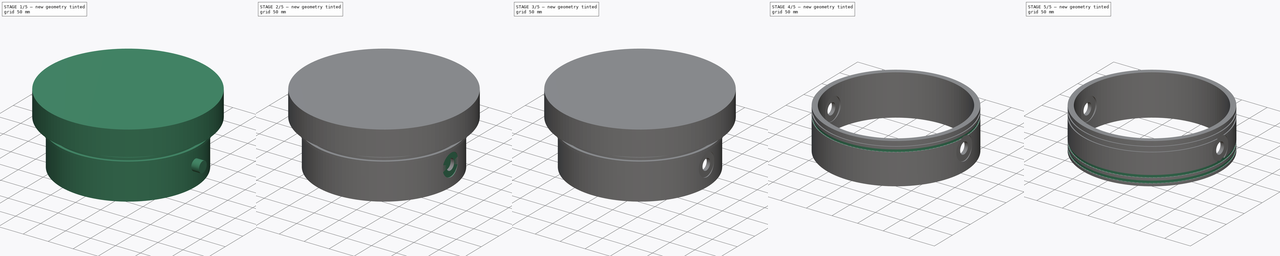
[diagram: build sequence overview — one tinted view per stage of 5, left to right]
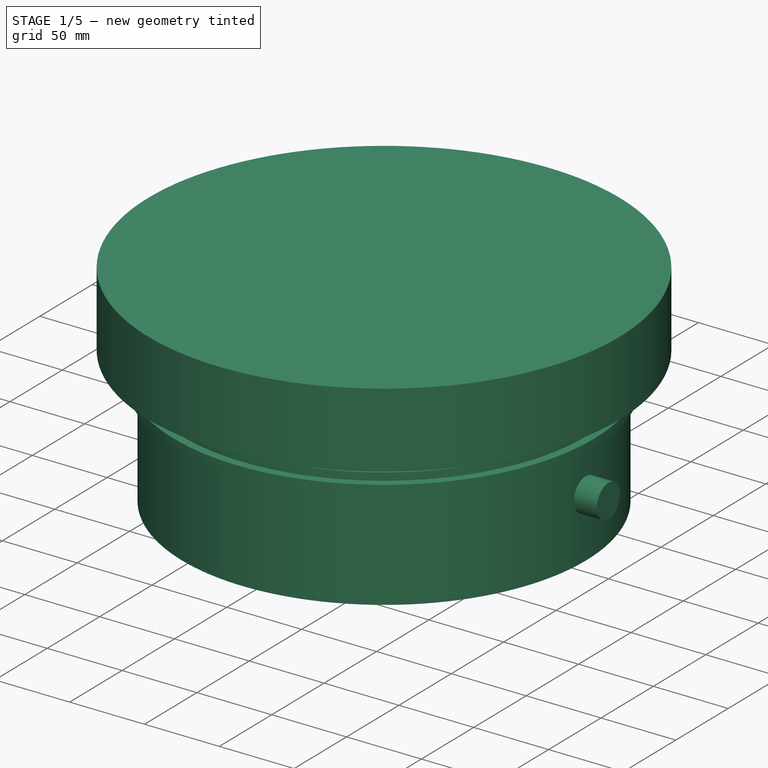
[diagram: stage 1 of 5 — iso view after this stage's code; geometry added in this stage tinted green]
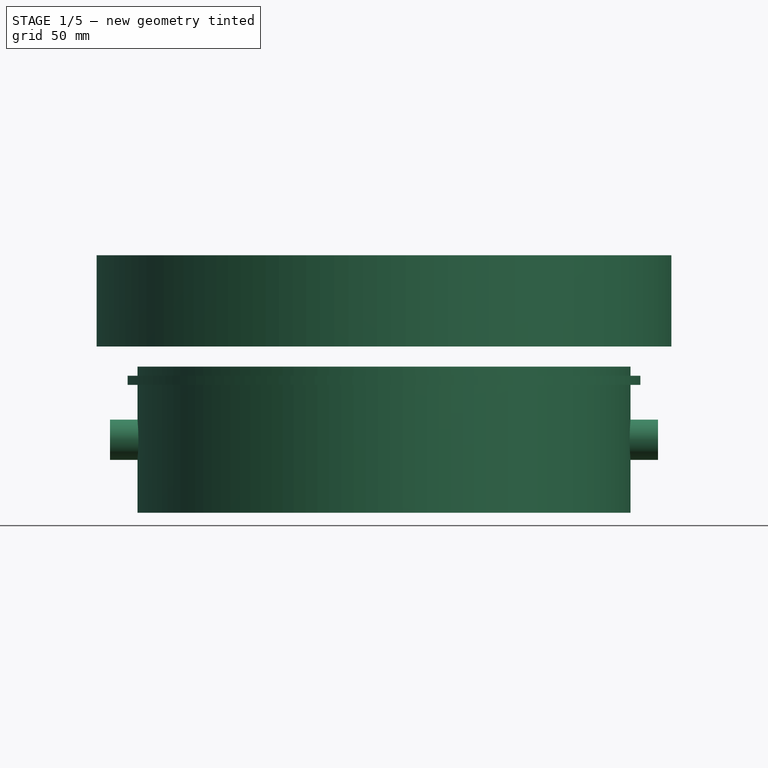
[diagram: stage 1 of 5 — front view after this stage's code; geometry added in this stage tinted green]
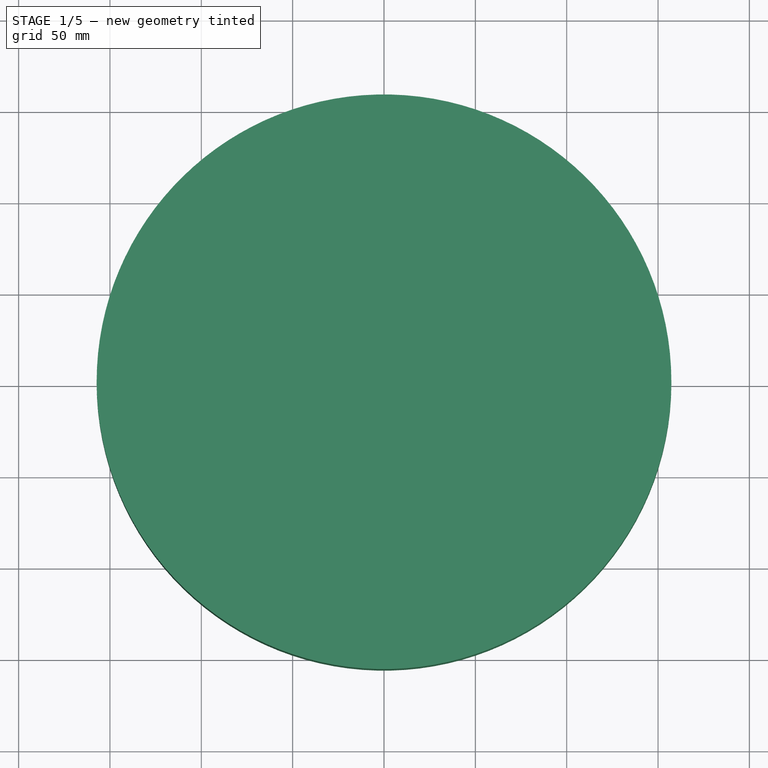
[diagram: stage 1 of 5 — top view after this stage's code; geometry added in this stage tinted green]
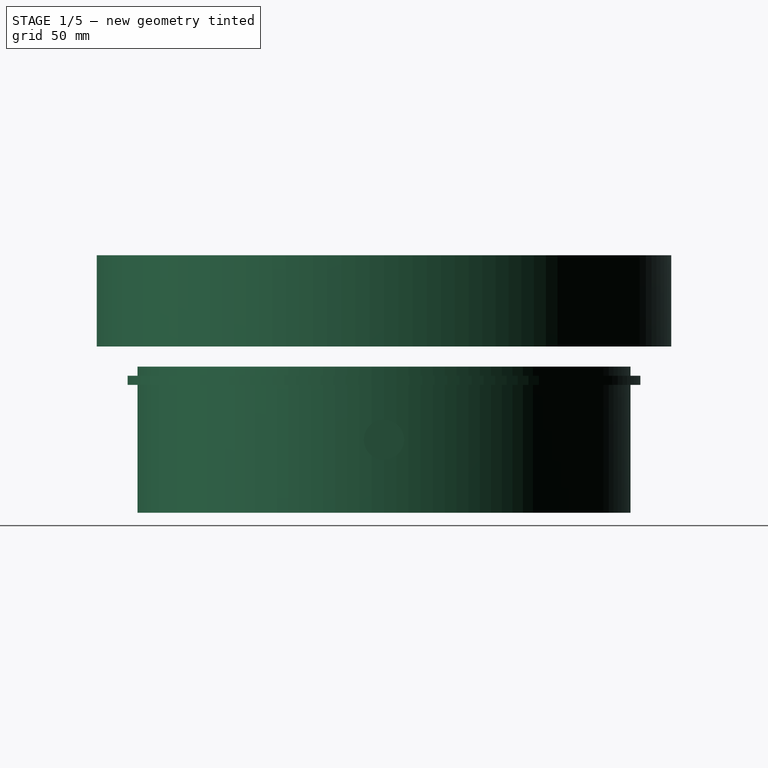
[diagram: stage 1 of 5 — right view after this stage's code; geometry added in this stage tinted green]
FCSTD DOCUMENT  (FreeCAD 0.17R13528 (Git))
Label: ringverbinder
License: All rights reserved
LicenseURL: http://en.wikipedia.org/wiki/All_rights_reserved
objects: Part::Extrusion×11, Part::Cut×10, Sketcher::SketchObject×5
note: 26 computed .brp shape members not serialized (recipe doc carries the construction recipe); baked Part::Feature solids carry a one-line shape summary decoded from their .brp

FEATURE [Sketcher::SketchObject] Sketch
  sketch-geometry (2):
    g0: Circle CenterX=0 CenterY=0 CenterZ=0 NormalX=0 NormalY=0 NormalZ=1 AngleXU=0 Radius=125
    g1: Circle CenterX=0 CenterY=0 CenterZ=0 NormalX=0 NormalY=0 NormalZ=1 AngleXU=0 Radius=134.952
  constraints (2):
    c: Coincident(g0,g-1)
    c: Coincident(g1,g-1)
FEATURE [Part::Extrusion] Extrude001
  Base = -> Sketch
  Dir = (0,0,1)
  DirMode = 2
  FaceMakerClass = Part::FaceMakerBullseye
  LengthFwd = 80
  LengthRev = 0
  Placement = pos=(0,0,-40) rot=(0,0,1;0rad)
  Solid = true
  Symmetric = false
FEATURE [Sketcher::SketchObject] Sketch002
  Placement = pos=(0,0,0) rot=(0.57735,0.57735,0.57735;2.0944rad)
  sketch-geometry (1):
    g0: Circle CenterX=0 CenterY=0 CenterZ=0 NormalX=0 NormalY=0 NormalZ=1 AngleXU=0 Radius=11
  constraints (1):
    c: Coincident(g0,g-1)
FEATURE [Part::Extrusion] Extrude
  Base = -> Sketch002
  Dir = (1,0,0)
  DirMode = 2
  FaceMakerClass = Part::FaceMakerBullseye
  LengthFwd = 300
  LengthRev = 0
  Solid = true
  Symmetric = true
FEATURE [Sketcher::SketchObject] Sketch004
  sketch-geometry (1):
    g0: Circle CenterX=0 CenterY=0 CenterZ=0 NormalX=0 NormalY=0 NormalZ=1 AngleXU=0 Radius=157.294
  constraints (1):
    c: Coincident(g0,g-1)
FEATURE [Part::Extrusion] Extrude007
  Base = -> Sketch004
  Dir = (0,0,1)
  DirMode = 2
  FaceMakerClass = Part::FaceMakerBullseye
  LengthFwd = 50
  LengthRev = 0
  Placement = pos=(0,0,51) rot=(0,0,1;0rad)
  Solid = true
  Symmetric = false
FEATURE [Part::Extrusion] Extrude009
  Base = -> Sketch005
  Dir = (0,0,1)
  DirMode = 2
  FaceMakerClass = Part::FaceMakerBullseye
  LengthFwd = 5
  LengthRev = 0
  Placement = pos=(0,0,30) rot=(0,0,1;0rad)
  Solid = true
  Symmetric = false
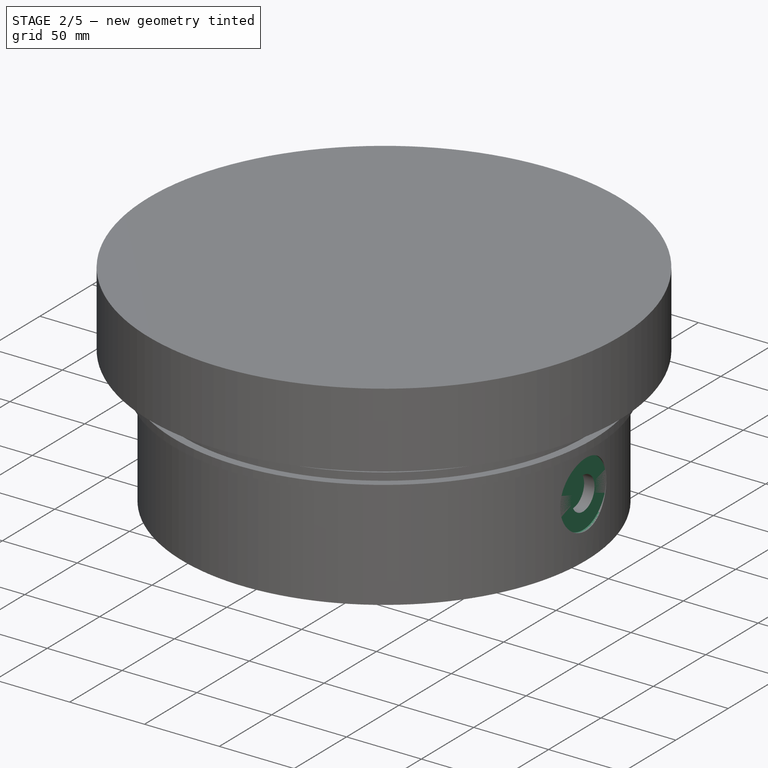
[diagram: stage 2 of 5 — iso view after this stage's code; geometry added in this stage tinted green]
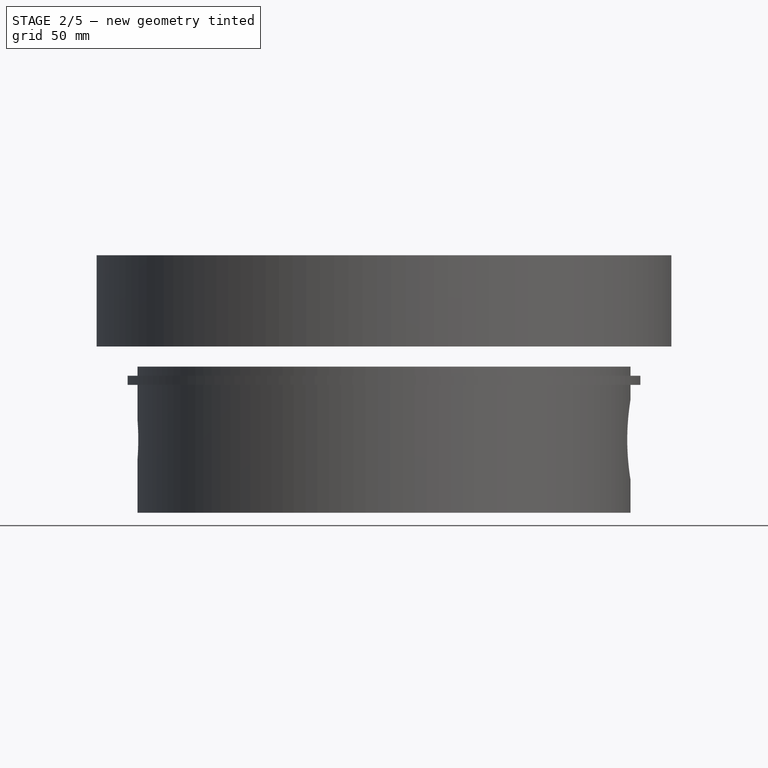
[diagram: stage 2 of 5 — front view after this stage's code; geometry added in this stage tinted green]
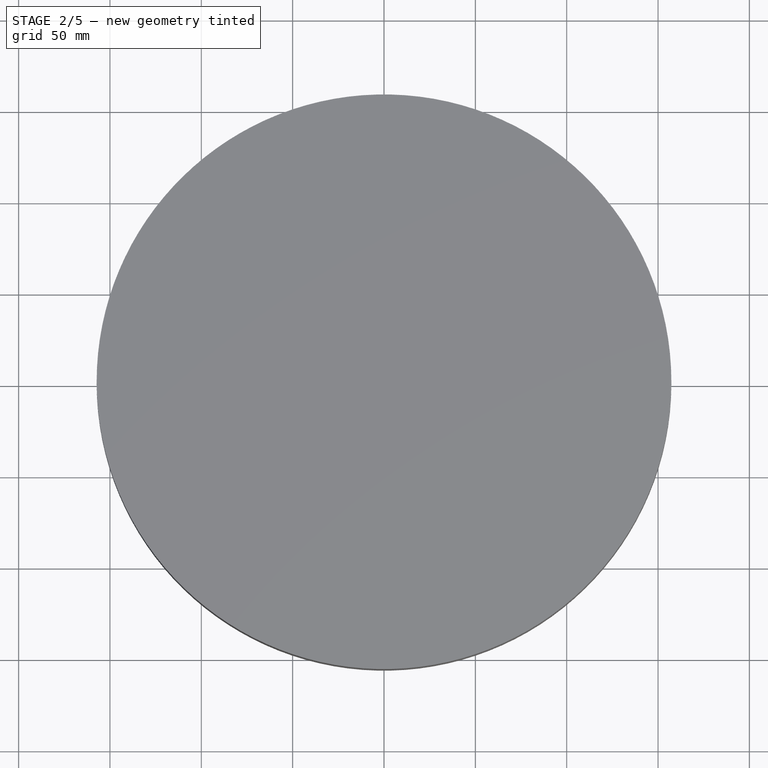
[diagram: stage 2 of 5 — top view after this stage's code; geometry added in this stage tinted green]
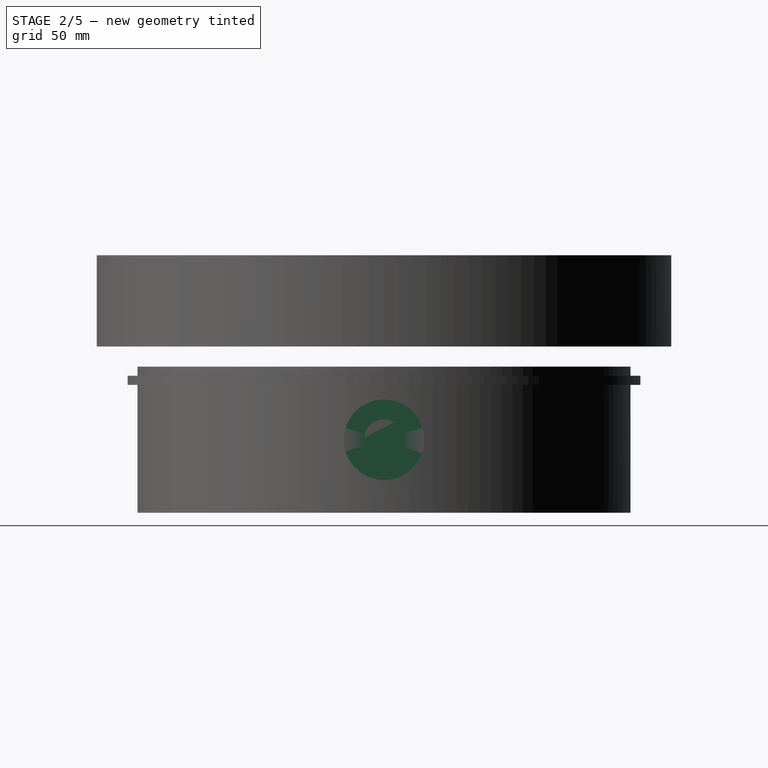
[diagram: stage 2 of 5 — right view after this stage's code; geometry added in this stage tinted green]
FEATURE [Sketcher::SketchObject] Sketch003
  MapMode = 5
  Placement = pos=(150,0,0) rot=(0.57735,0.57735,0.57735;2.0944rad)
  Support = -> [Extrude]
  sketch-geometry (1):
    g0: Circle CenterX=0 CenterY=0 CenterZ=0 NormalX=0 NormalY=0 NormalZ=1 AngleXU=0 Radius=22
FEATURE [Part::Extrusion] Extrude002
  Base = -> Sketch003
  Dir = (-1,0,0)
  DirMode = 0
  FaceMakerClass = Part::FaceMakerBullseye
  LengthFwd = 10
  LengthRev = 0
  Placement = pos=(-7,0,0) rot=(0,0,1;0rad)
  Solid = true
  Symmetric = false
FEATURE [Part::Extrusion] Extrude006
  Base = -> Sketch003
  Dir = (-1,0,0)
  DirMode = 0
  FaceMakerClass = Part::FaceMakerBullseye
  LengthFwd = 10
  LengthRev = 0
  Placement = pos=(-24,0,0) rot=(0,0,1;0rad)
  Solid = true
  Symmetric = false
FEATURE [Part::Cut] Cut
  Base = -> Extrude001
  Tool = -> Extrude
FEATURE [Part::Cut] Cut001
  Base = -> Cut
  Tool = -> Extrude002
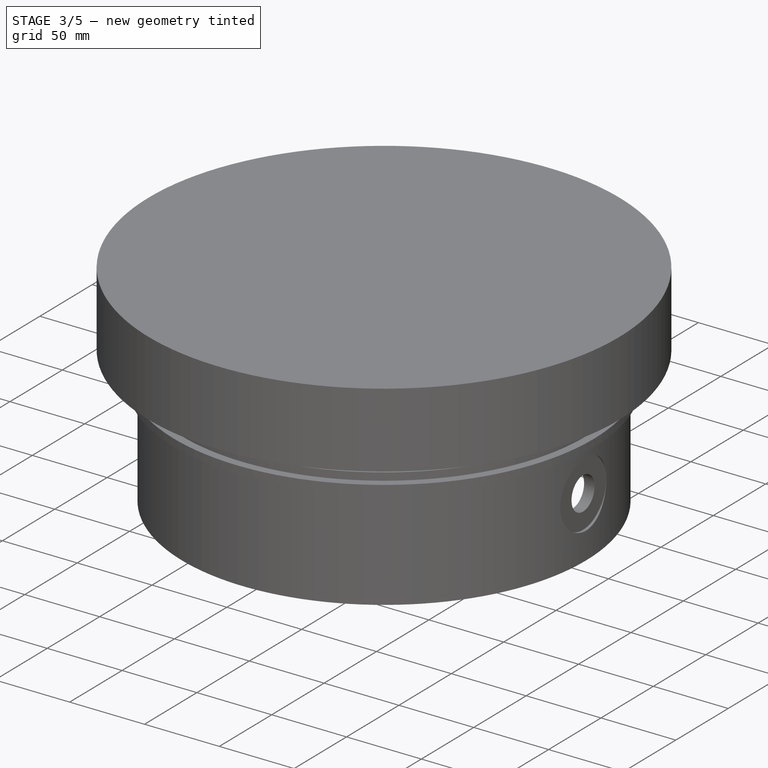
[diagram: stage 3 of 5 — iso view after this stage's code; geometry added in this stage tinted green]
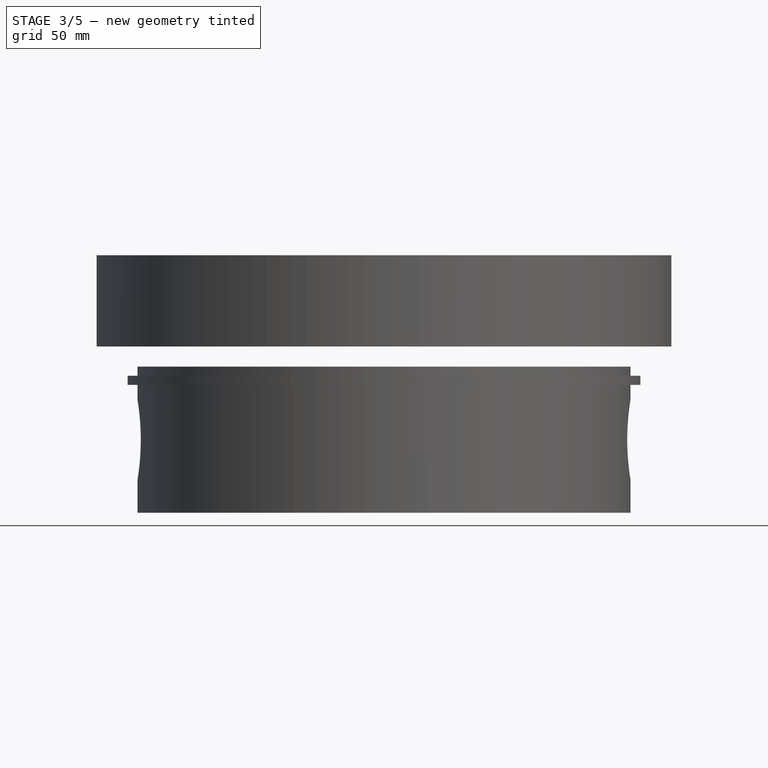
[diagram: stage 3 of 5 — front view after this stage's code; geometry added in this stage tinted green]
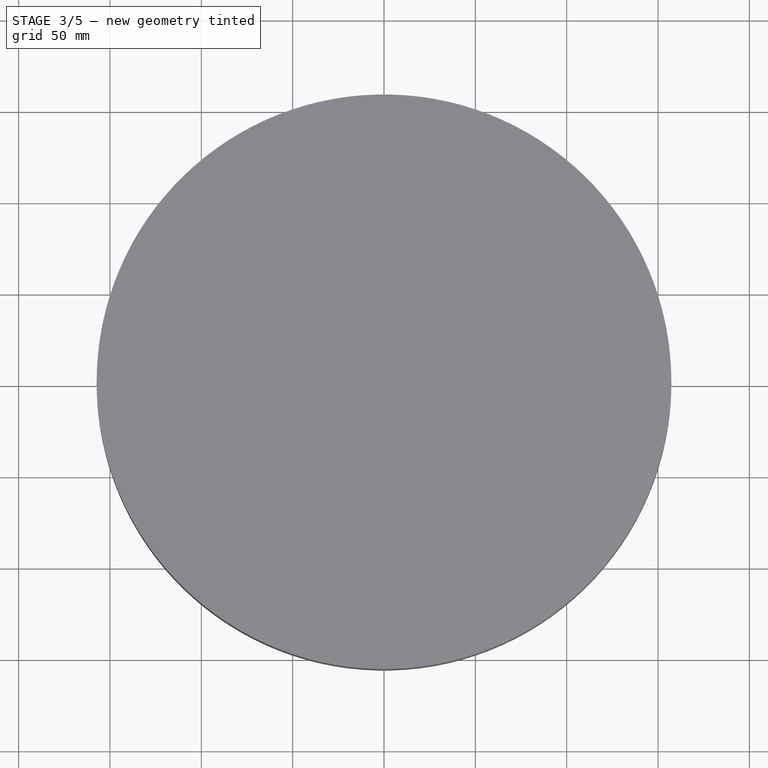
[diagram: stage 3 of 5 — top view after this stage's code; geometry added in this stage tinted green]
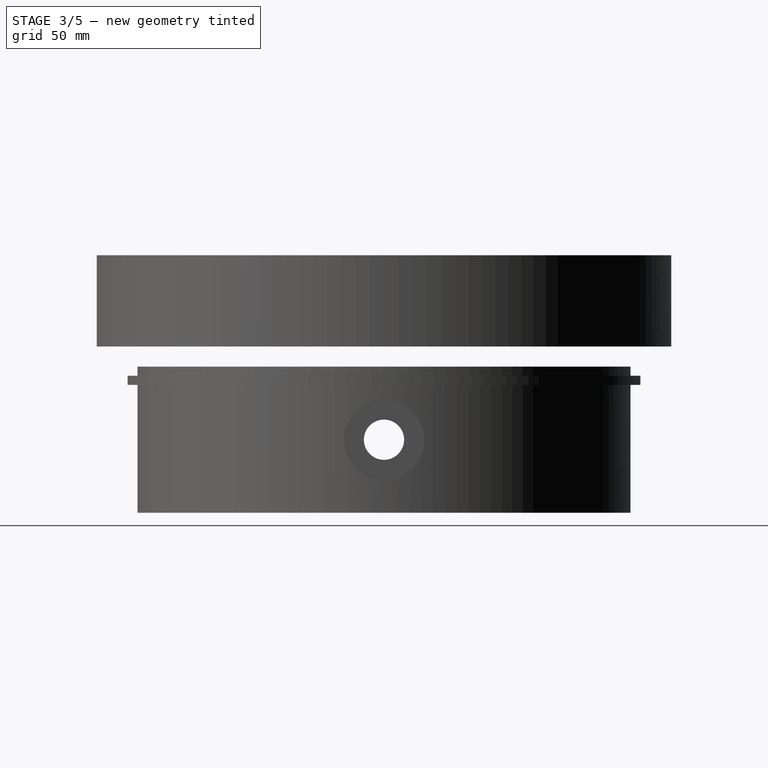
[diagram: stage 3 of 5 — right view after this stage's code; geometry added in this stage tinted green]
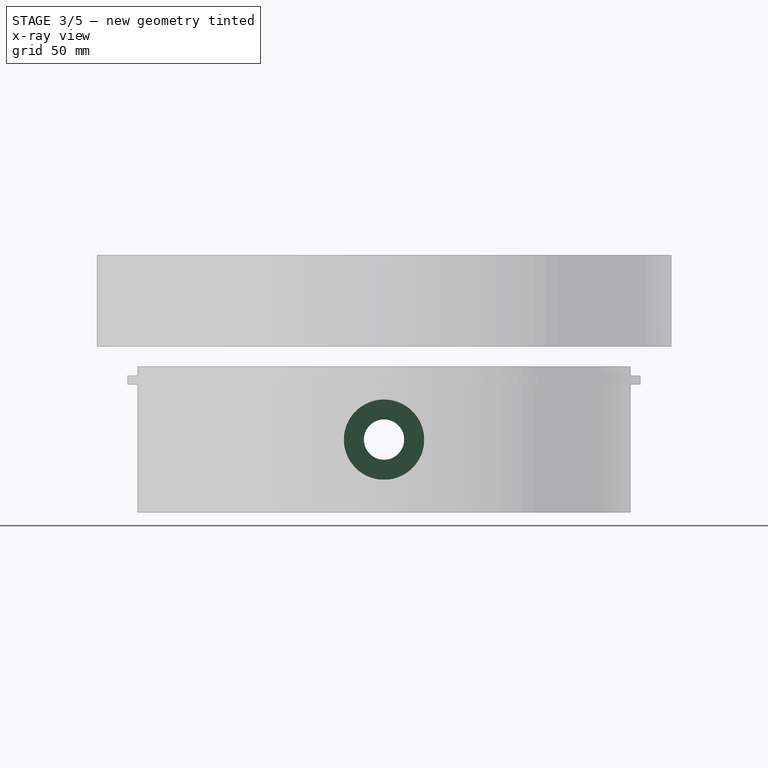
[diagram: stage 3 of 5 — x-ray composite at the right view; earlier geometry ghosted, this stage's added geometry solid]
FEATURE [Part::Extrusion] Extrude004
  Base = -> Sketch003
  Dir = (-1,0,0)
  DirMode = 0
  FaceMakerClass = Part::FaceMakerBullseye
  LengthFwd = 10
  LengthRev = 0
  Placement = pos=(-283,0,0) rot=(0,0,1;0rad)
  Solid = true
  Symmetric = false
FEATURE [Part::Extrusion] Extrude005
  Base = -> Sketch003
  Dir = (-1,0,0)
  DirMode = 0
  FaceMakerClass = Part::FaceMakerBullseye
  LengthFwd = 10
  LengthRev = 0
  Placement = pos=(-266,0,0) rot=(0,0,1;0rad)
  Solid = true
  Symmetric = false
FEATURE [Part::Cut] Cut002
  Base = -> Cut001
  Tool = -> Extrude006
FEATURE [Part::Cut] Cut003
  Base = -> Cut002
  Tool = -> Extrude005
FEATURE [Part::Cut] Cut004
  Base = -> Cut003
  Tool = -> Extrude004
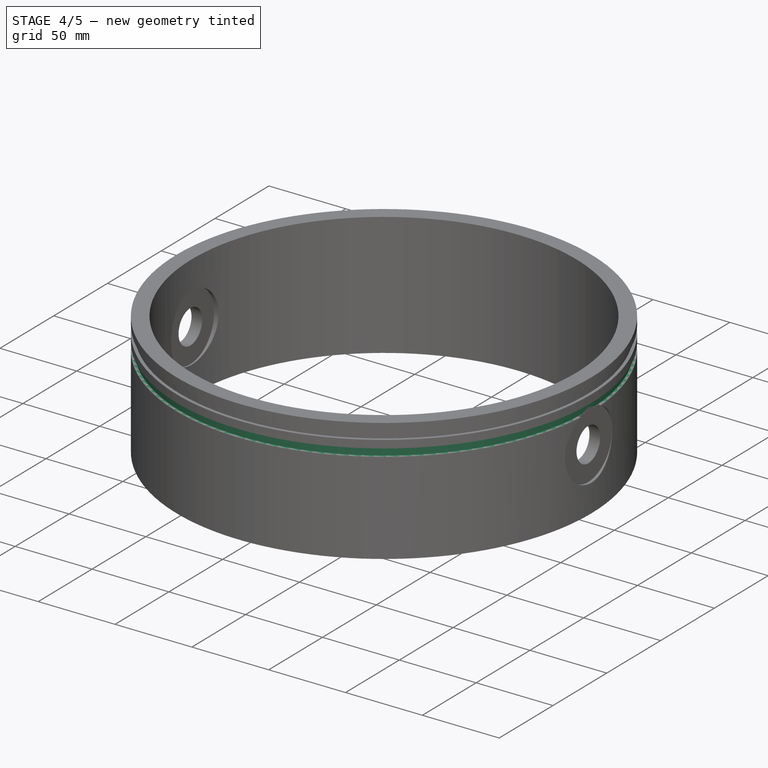
[diagram: stage 4 of 5 — iso view after this stage's code; geometry added in this stage tinted green]
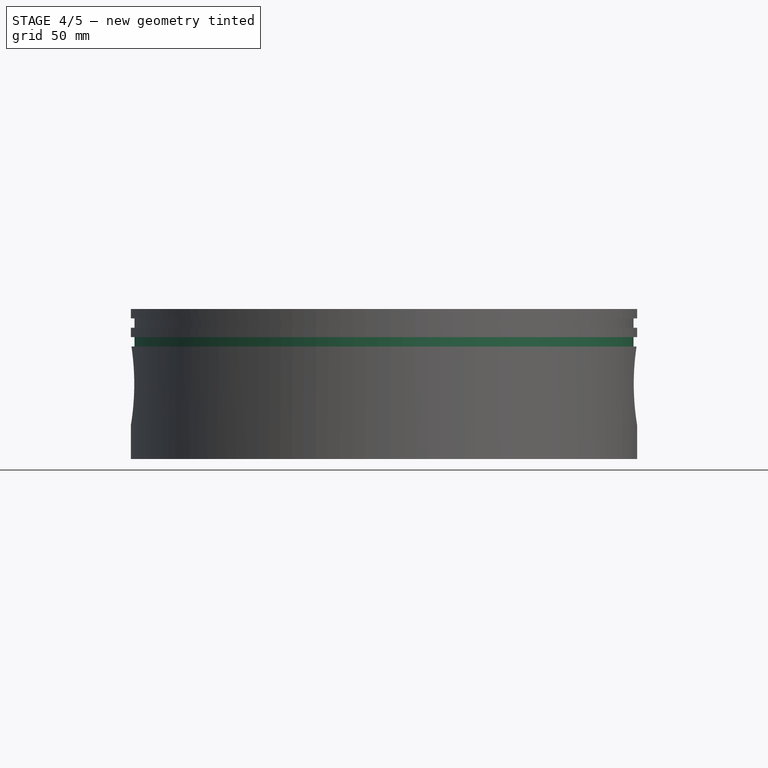
[diagram: stage 4 of 5 — front view after this stage's code; geometry added in this stage tinted green]
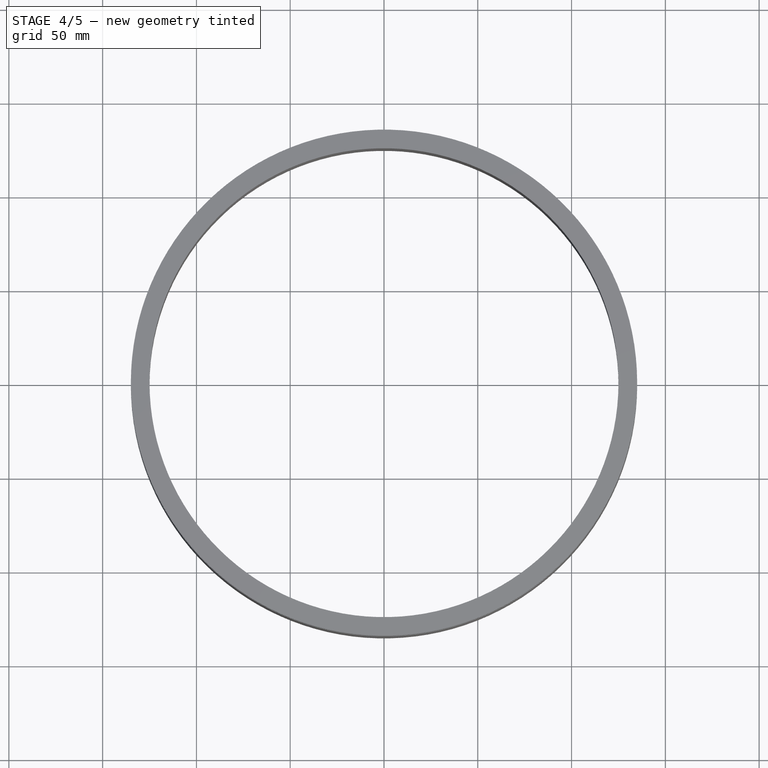
[diagram: stage 4 of 5 — top view after this stage's code; geometry added in this stage tinted green]
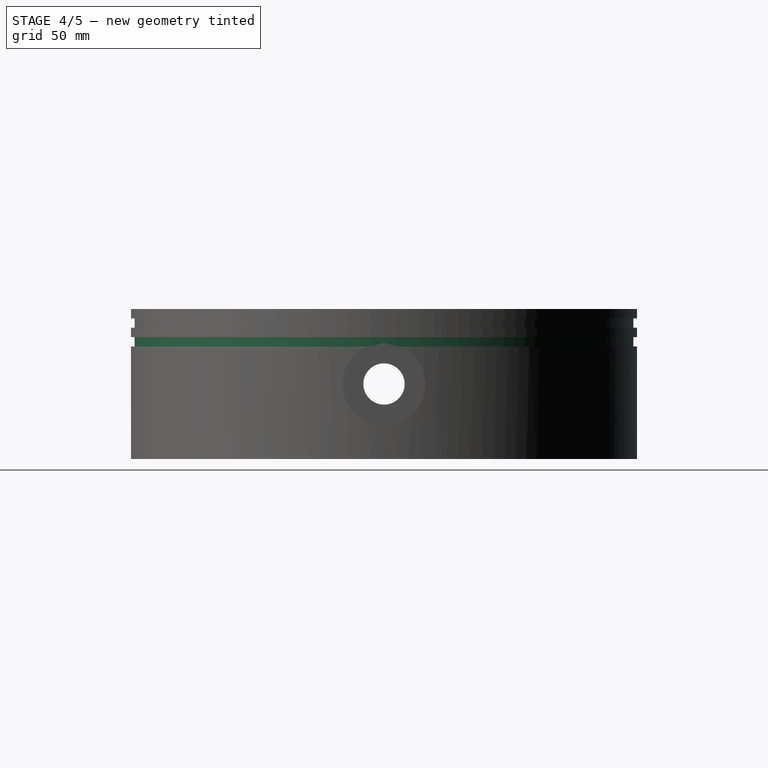
[diagram: stage 4 of 5 — right view after this stage's code; geometry added in this stage tinted green]
FEATURE [Part::Cut] Cut005
  Base = -> Cut004
  Tool = -> Extrude007
FEATURE [Sketcher::SketchObject] Sketch005
  sketch-geometry (2):
    g0: Circle CenterX=0 CenterY=0 CenterZ=0 NormalX=0 NormalY=0 NormalZ=1 AngleXU=0 Radius=140.35
    g1: Circle CenterX=0 CenterY=0 CenterZ=0 NormalX=0 NormalY=0 NormalZ=1 AngleXU=0 Radius=133
  constraints (2):
    c: Coincident(g0,g-1)
    c: Coincident(g1,g-1)
FEATURE [Part::Extrusion] Extrude008
  Base = -> Sketch005
  Dir = (0,0,1)
  DirMode = 2
  FaceMakerClass = Part::FaceMakerBullseye
  LengthFwd = 5
  LengthRev = 0
  Placement = pos=(0,0,20) rot=(0,0,1;0rad)
  Solid = true
  Symmetric = false
FEATURE [Part::Cut] Cut006
  Base = -> Cut005
  Tool = -> Extrude009
FEATURE [Part::Cut] Cut007
  Base = -> Cut006
  Tool = -> Extrude008
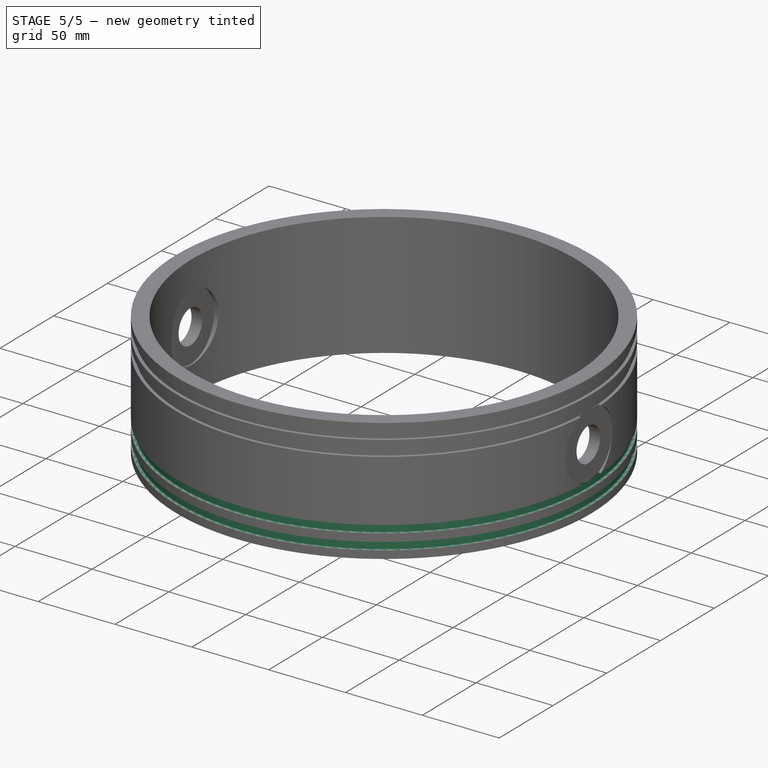
[diagram: stage 5 of 5 — iso view after this stage's code; geometry added in this stage tinted green]
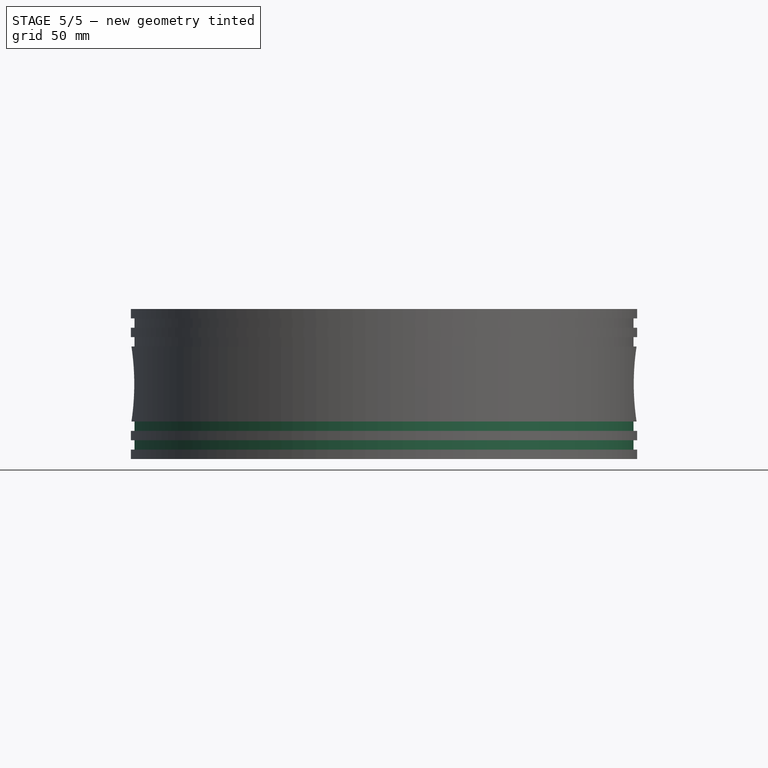
[diagram: stage 5 of 5 — front view after this stage's code; geometry added in this stage tinted green]
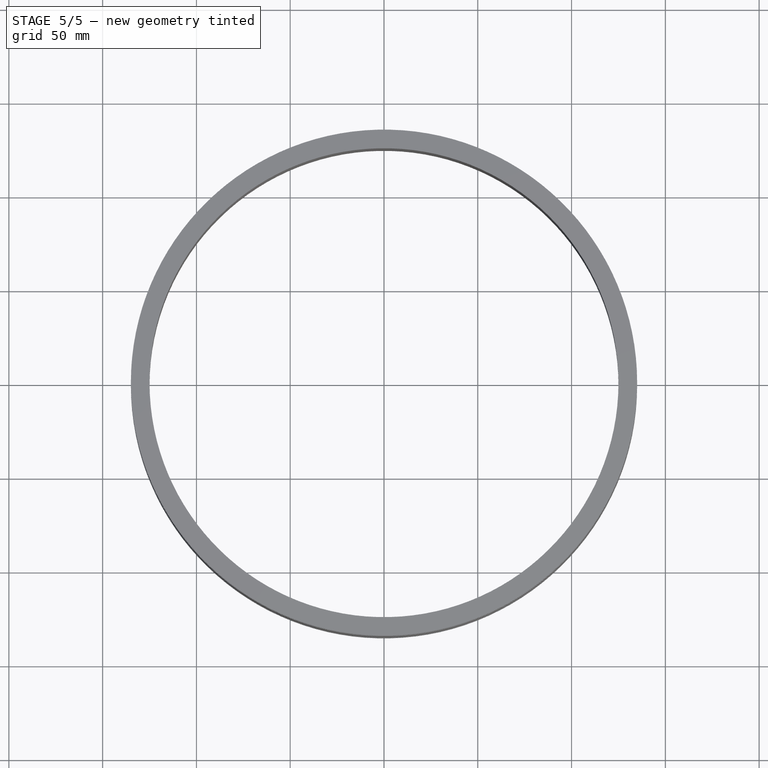
[diagram: stage 5 of 5 — top view after this stage's code; geometry added in this stage tinted green]
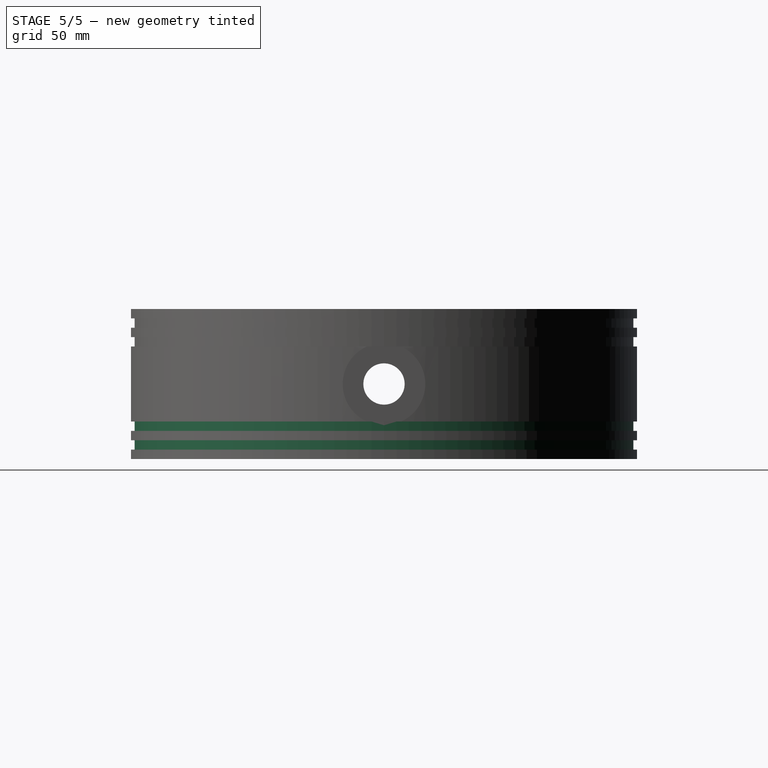
[diagram: stage 5 of 5 — right view after this stage's code; geometry added in this stage tinted green]
FEATURE [Part::Extrusion] Extrude010
  Base = -> Sketch005
  Dir = (0,0,1)
  DirMode = 2
  FaceMakerClass = Part::FaceMakerBullseye
  LengthFwd = 5
  LengthRev = 0
  Placement = pos=(0,0,-25) rot=(0,0,1;0rad)
  Solid = true
  Symmetric = false
FEATURE [Part::Extrusion] Extrude011
  Base = -> Sketch005
  Dir = (0,0,1)
  DirMode = 2
  FaceMakerClass = Part::FaceMakerBullseye
  LengthFwd = 5
  LengthRev = 0
  Placement = pos=(0,0,-35) rot=(0,0,1;0rad)
  Solid = true
  Symmetric = false
FEATURE [Part::Cut] Cut008
  Base = -> Cut007
  Tool = -> Extrude010
FEATURE [Part::Cut] Cut009
  Base = -> Cut008
  Tool = -> Extrude011
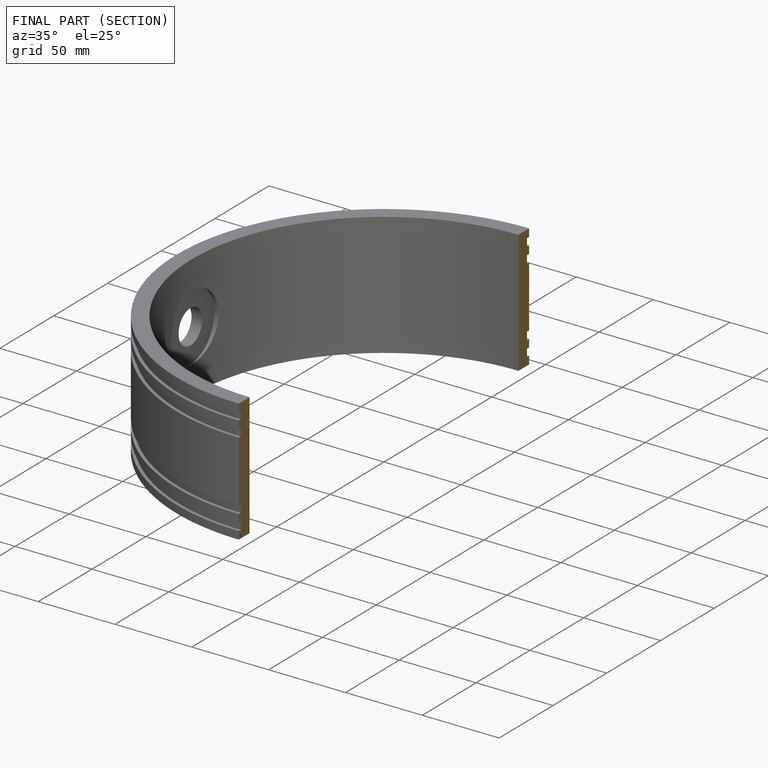
[diagram: finished part — half-section view (interior)]
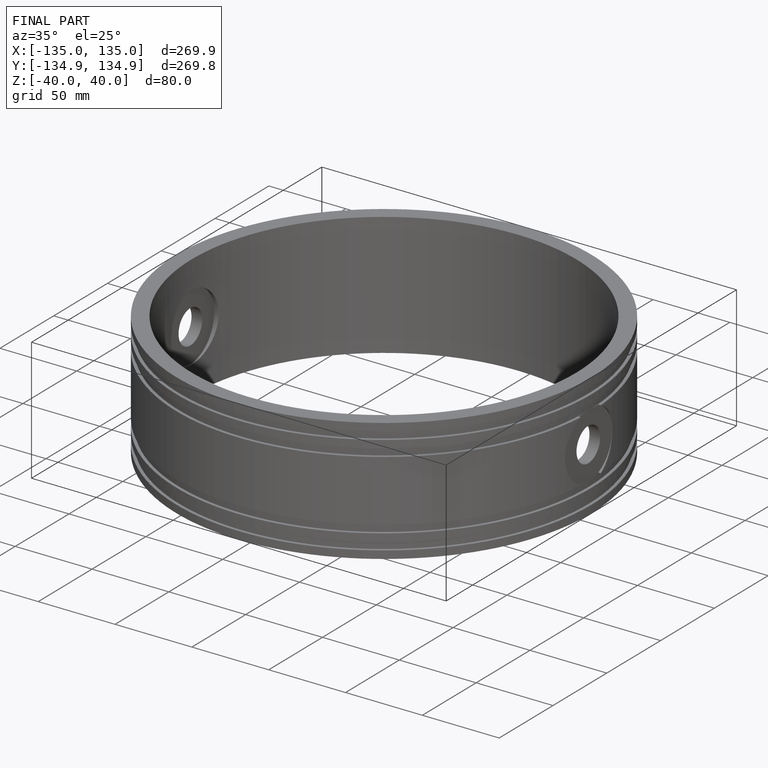
[diagram: finished part — iso view with bounding-box wireframe]
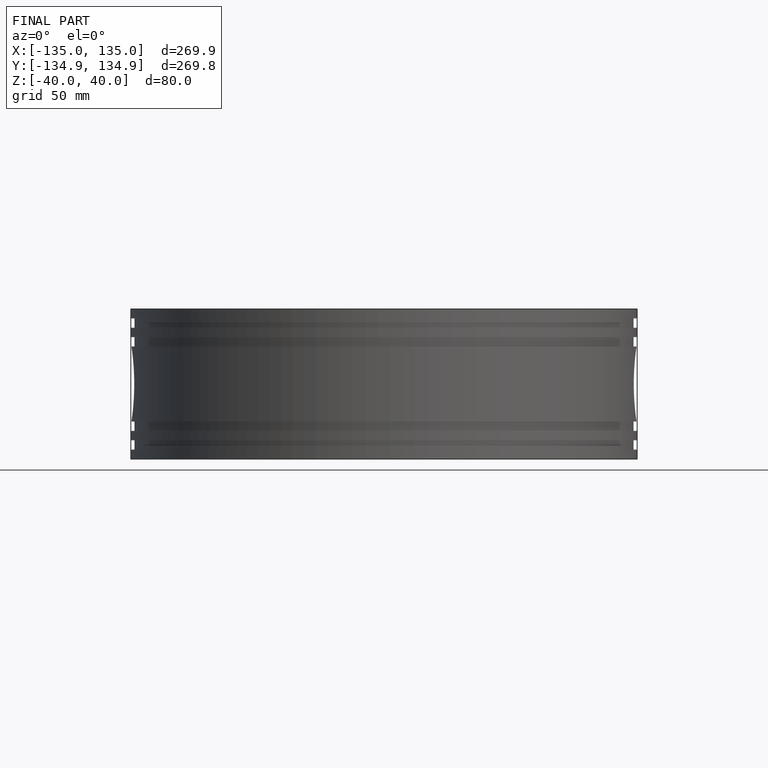
[diagram: finished part — front view with bounding-box wireframe]
